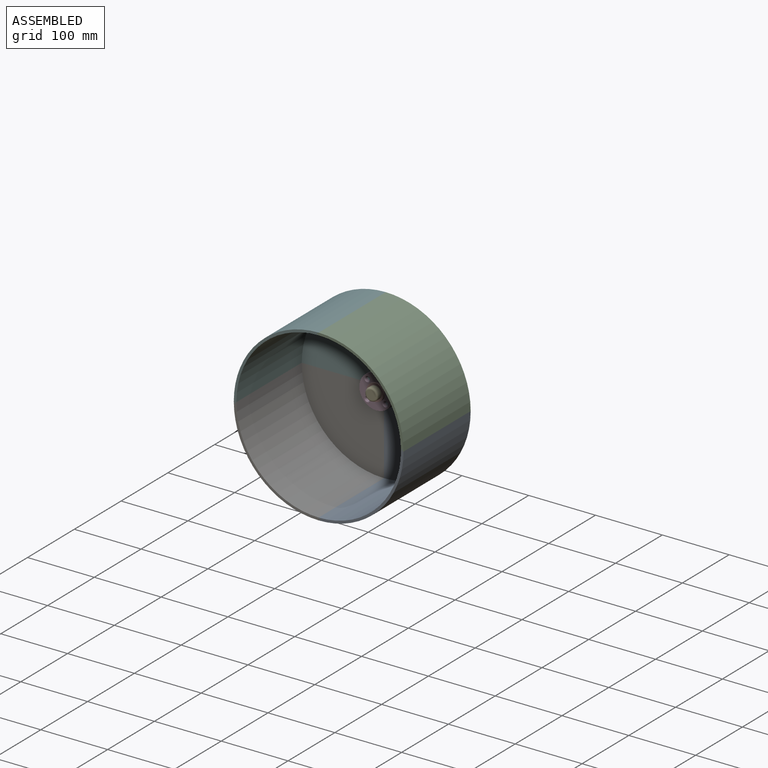
[diagram: assembled view]
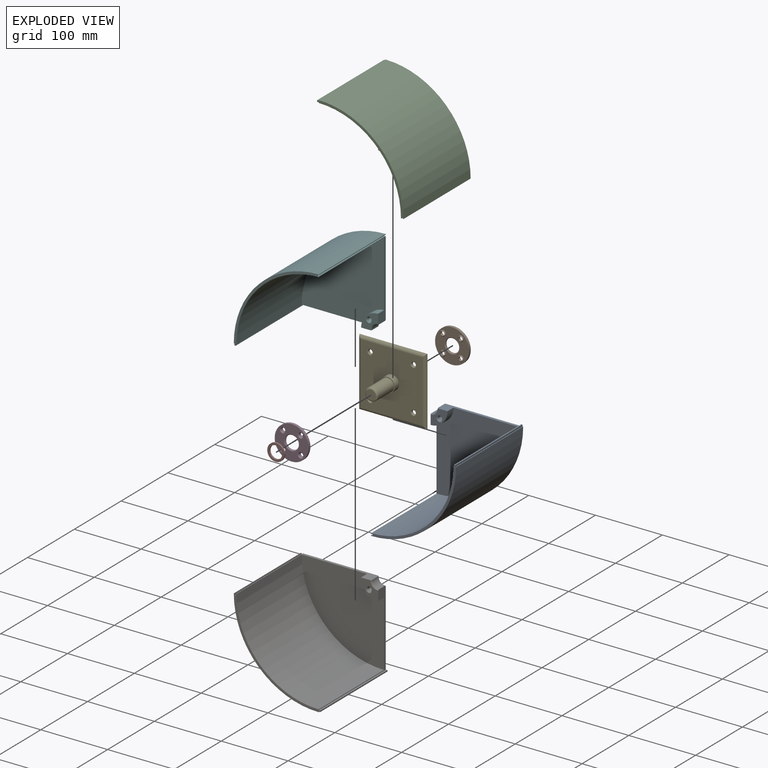
[diagram: exploded view]
GUIDED TOUR — MATED ASSEMBLY (Onshape document a05f78b1c5fa4928377569fe, AutoMate assembly a05f78b1c5fa4928377569fe_af85727824f9fc0c947a1b8c_8192579944c0cb882bcdac87_default)

This assembly has 8 components, labeled P0..P7 below (a component is one placed occurrence of a part; the same part can appear more than once), held together by 8 mates. A mate is a constraint between two components; its type names the relative motion it leaves free:
  CYLINDRICAL — leaves both rotation about and translation along the listed axis free,
  FASTENED — locks the two components together rigidly (no relative motion).
Axis/direction vectors are unit vectors and 'through' points are millimeter coordinates, both in the assembly's world frame.

MATES
  1. FASTENED "Fastened 4": P2 <-> P5, direction (0.000, 0.000, 1.000) through (-44.11, 98.42, 121.76) mm
  2. FASTENED "Fastened 5": P6 <-> P0, direction (0.000, 0.000, -1.000) through (-41.57, 98.42, -130.34) mm
  3. FASTENED "Fastened 3": P0 <-> P2, direction (-1.000, 0.000, 0.000) through (81.30, 98.42, -3.02) mm
  4. FASTENED "Fastened 6": P4 <-> P1, direction (0.000, -1.000, 0.000) through (-42.84, 173.98, -4.29) mm
  5. FASTENED "Fastened 7": P7 <-> P3, direction (0.000, 1.000, 0.000) through (-42.84, 149.85, -4.29) mm
  6. FASTENED "Fastened 2": P1 <-> P0, direction (0.000, -1.000, 0.000) through (-29.37, 170.17, -17.76) mm
  7. FASTENED "Fastened 1": P3 <-> P0, direction (0.000, 1.000, 0.000) through (-29.37, 153.66, -17.76) mm
  8. CYLINDRICAL "Cylindrical 1": P4 <-> P1, axis (0.000, -1.000, 0.000) through (-42.84, 138.42, -4.29) mm

ASSEMBLY ORDER
  1. P4 — the base component [order verified]
  2. P1 [order verified]
  3. P3 [order verified]
  4. P7 [order verified]
  5. P0 [order verified]
  6. P6 [order verified]
  7. P5 [order verified]
  8. P2 [order verified]
Order-tag legend:
  [order verified] — this step's position reverses a verified removal order: the component was checked to insert without passing through the ones already placed.

Of the 8 components, 1 carries the full construction recipe — the FeatureScript program that regenerates the part's solid from scratch; the rest are supplied as boundary geometry only.
Each toured component is shown spotlighted twice — in the assembled view, then in the exploded view, where a leader line traces a displaced component back to its assembled socket (saturated green if recipe-attached, orange if geometry-only; every other component desaturated gray) — followed by its recipe or geometry summary and the mates that hold it.
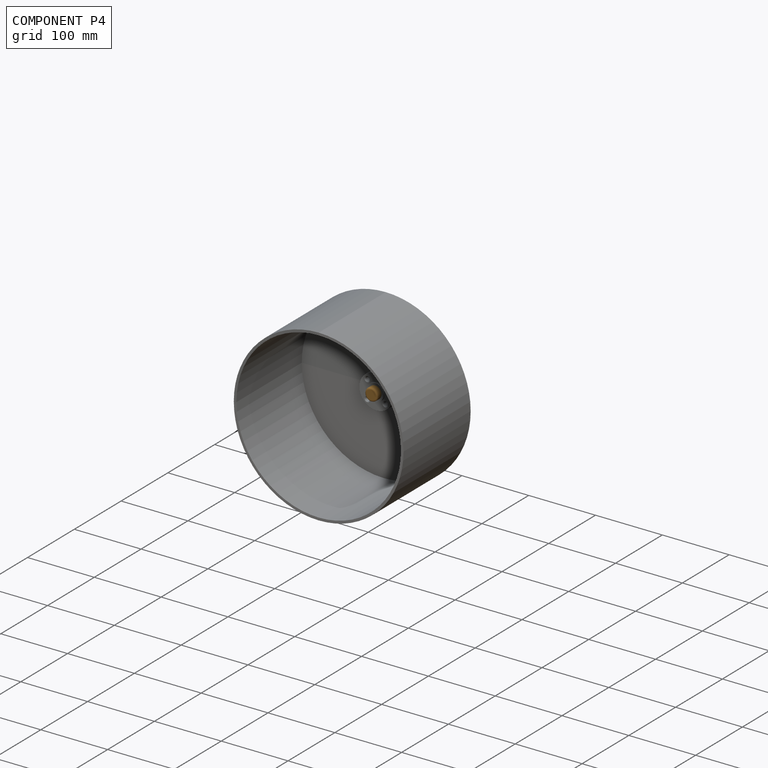
[diagram: component P4 — assembled]
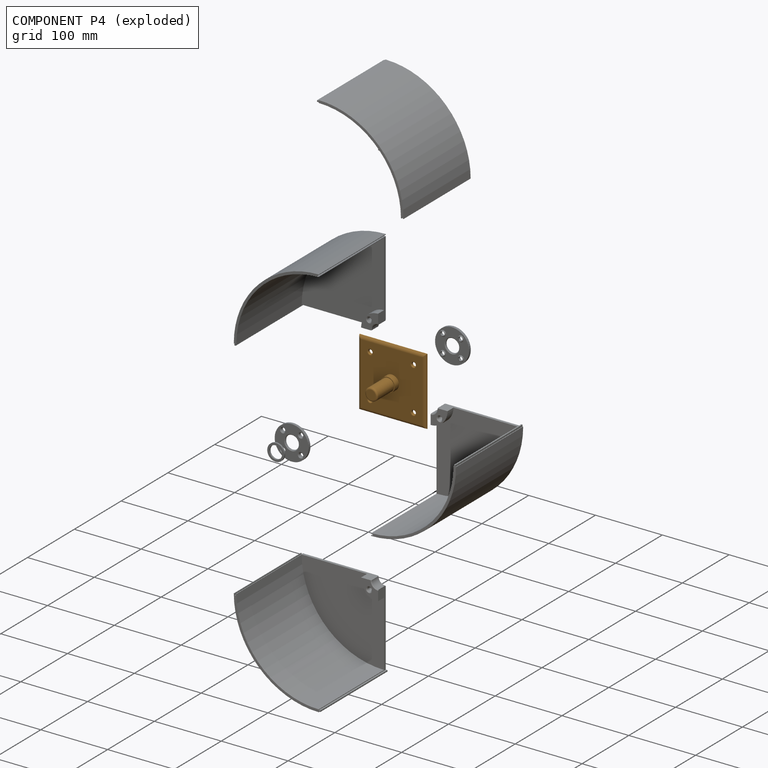
[diagram: component P4 — exploded]
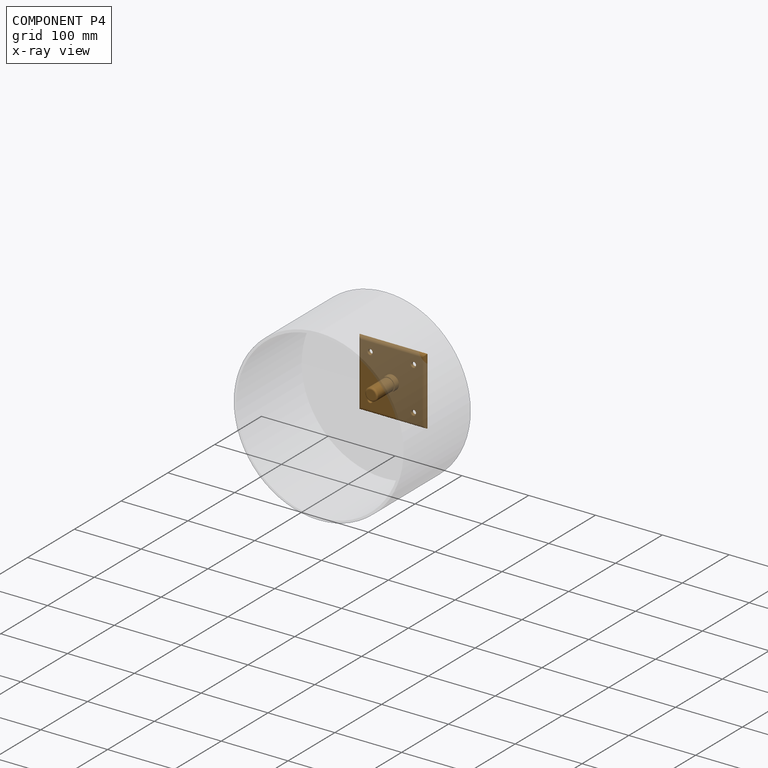
[diagram: component P4 — x-ray view]
COMPONENT P4 — geometry summary (no construction recipe available for this part):
  bounding box: 101.6 x 101.6 x 48.3 mm
  B-rep topology: 1 solid, 19 faces, 80 edges
  volume: 50199 mm^3 (10% of its bounding box)
  symmetry: 4-fold rotationally symmetric about the y axis; mirror-symmetric across its x mid-plane, z mid-plane
Held by: FASTENED mate "Fastened 6" to P1; CYLINDRICAL mate "Cylindrical 1" to P1.
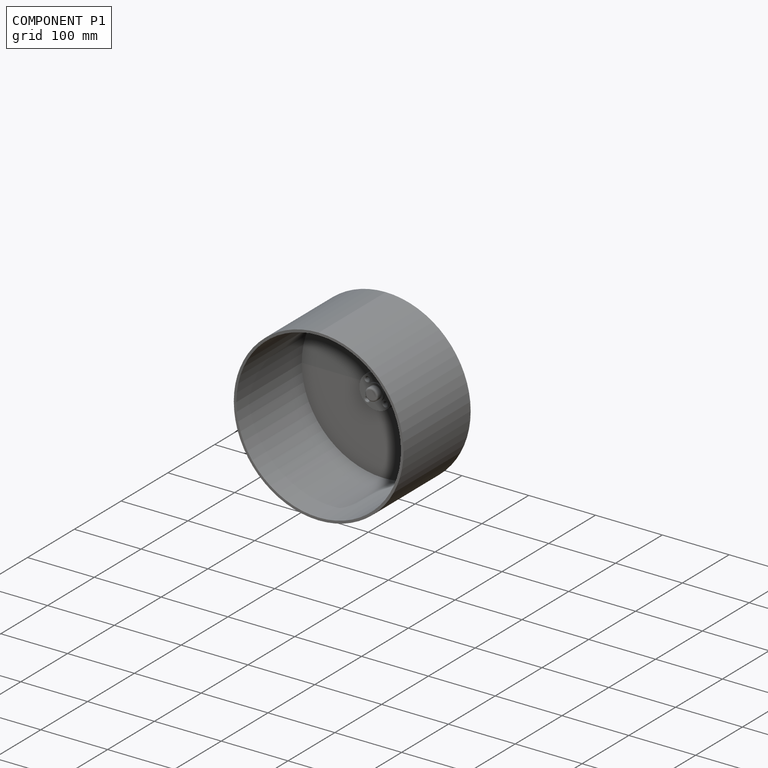
[diagram: component P1 — assembled]
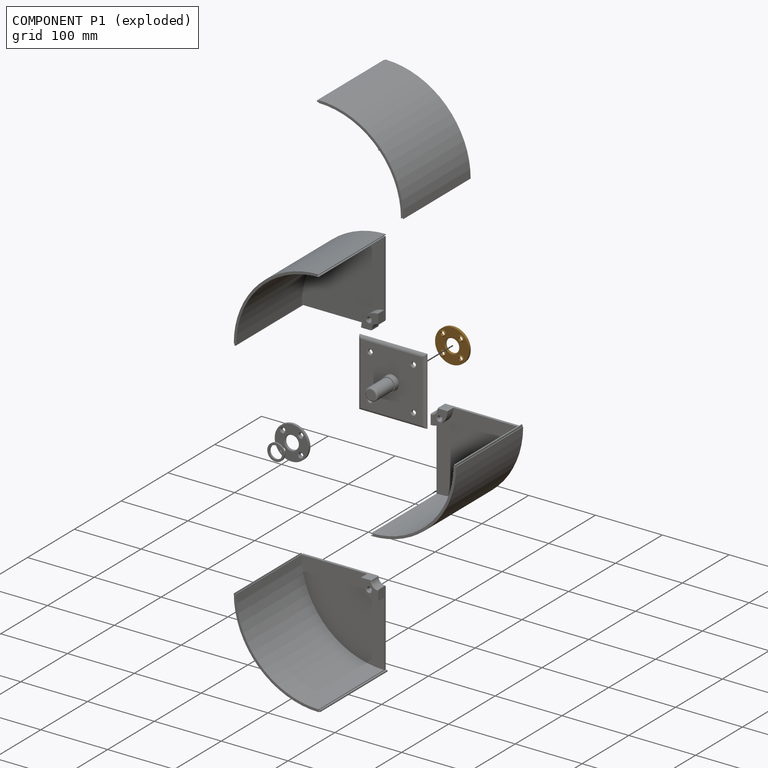
[diagram: component P1 — exploded]
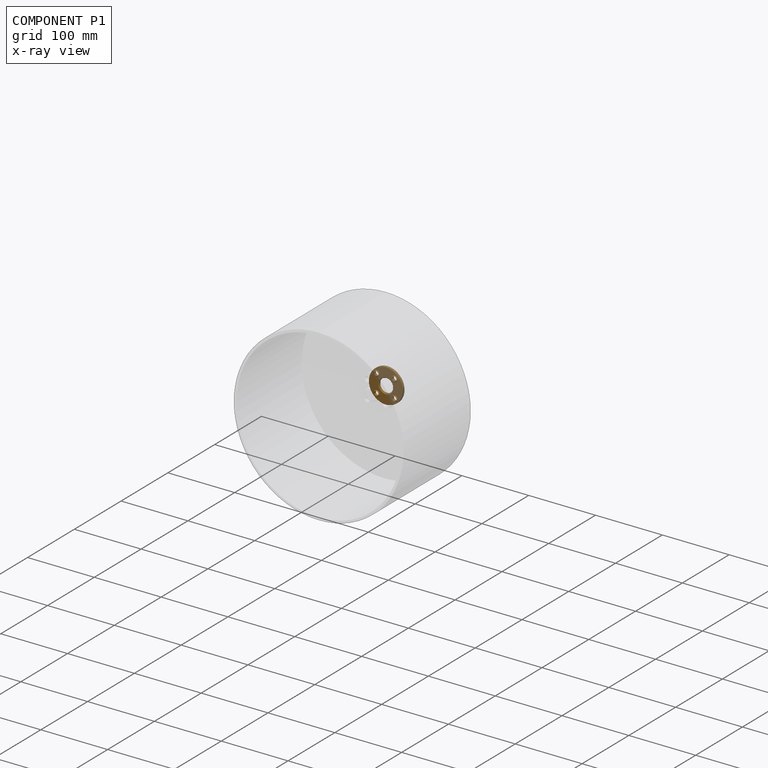
[diagram: component P1 — x-ray view]
COMPONENT P1 — geometry summary (no construction recipe available for this part):
  bounding box: 50.8 x 50.8 x 5.1 mm
  B-rep topology: 1 solid, 18 faces, 92 edges
  volume: 5963 mm^3 (45% of its bounding box)
  symmetry: 4-fold rotationally symmetric about the y axis; mirror-symmetric across its x mid-plane, z mid-plane
Held by: FASTENED mate "Fastened 6" to P4; FASTENED mate "Fastened 2" to P0; CYLINDRICAL mate "Cylindrical 1" to P4.
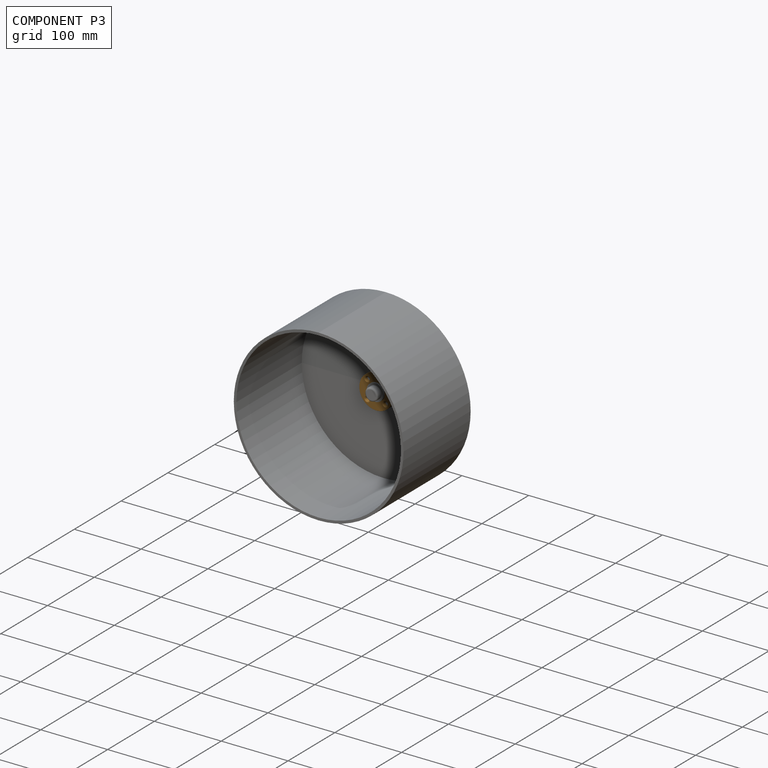
[diagram: component P3 — assembled]
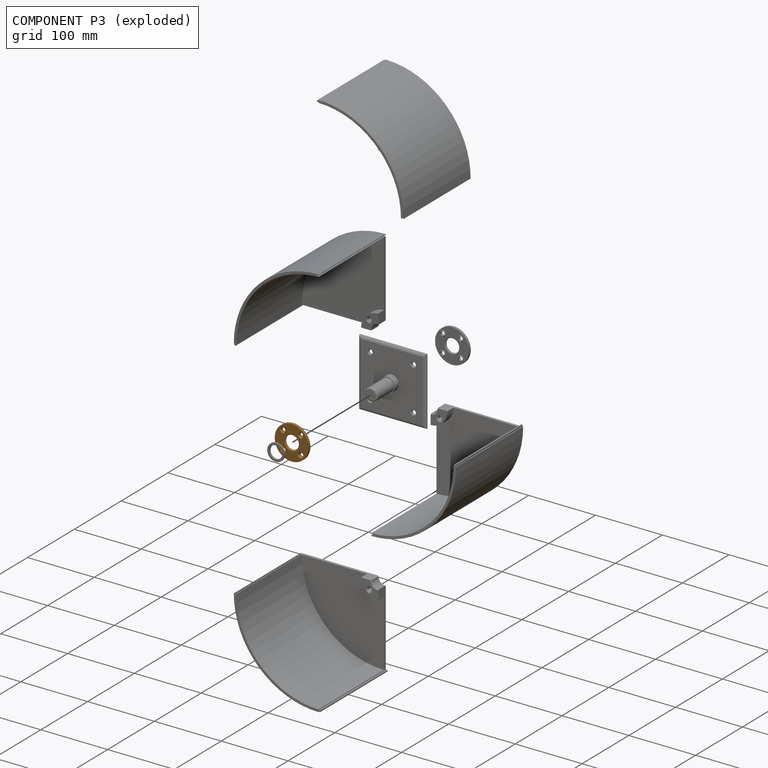
[diagram: component P3 — exploded]
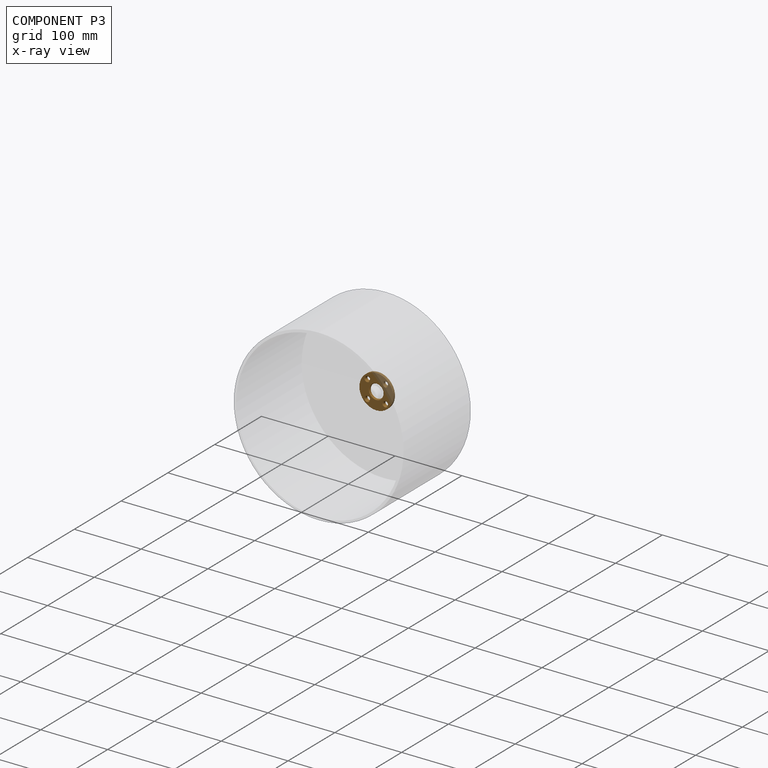
[diagram: component P3 — x-ray view]
COMPONENT P3 — geometry summary (no construction recipe available for this part):
  bounding box: 50.8 x 50.8 x 5.1 mm
  B-rep topology: 1 solid, 18 faces, 92 edges
  volume: 5963 mm^3 (45% of its bounding box)
  symmetry: 4-fold rotationally symmetric about the y axis; mirror-symmetric across its x mid-plane, z mid-plane
Held by: FASTENED mate "Fastened 7" to P7; FASTENED mate "Fastened 1" to P0.
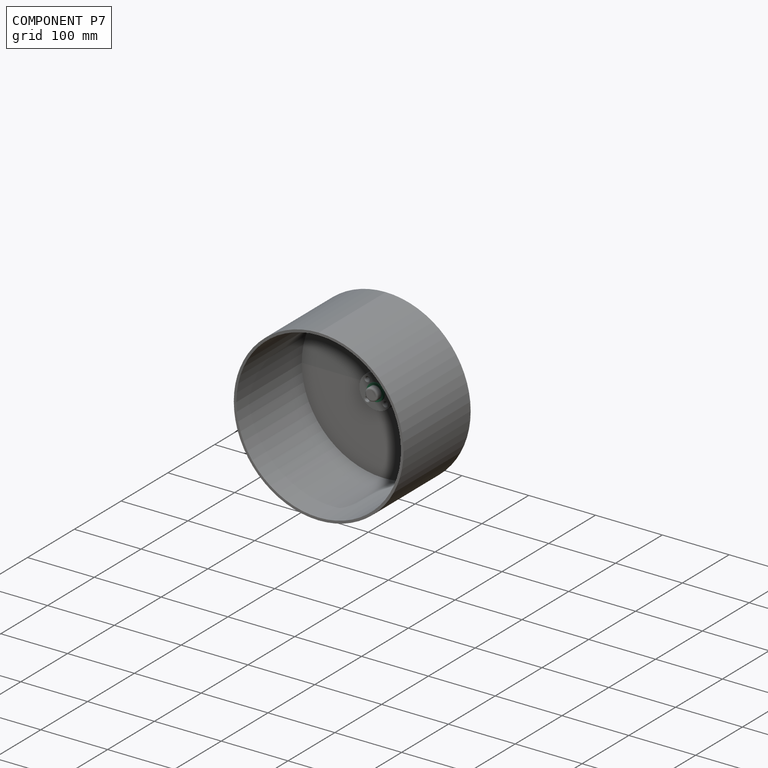
[diagram: component P7 — assembled]
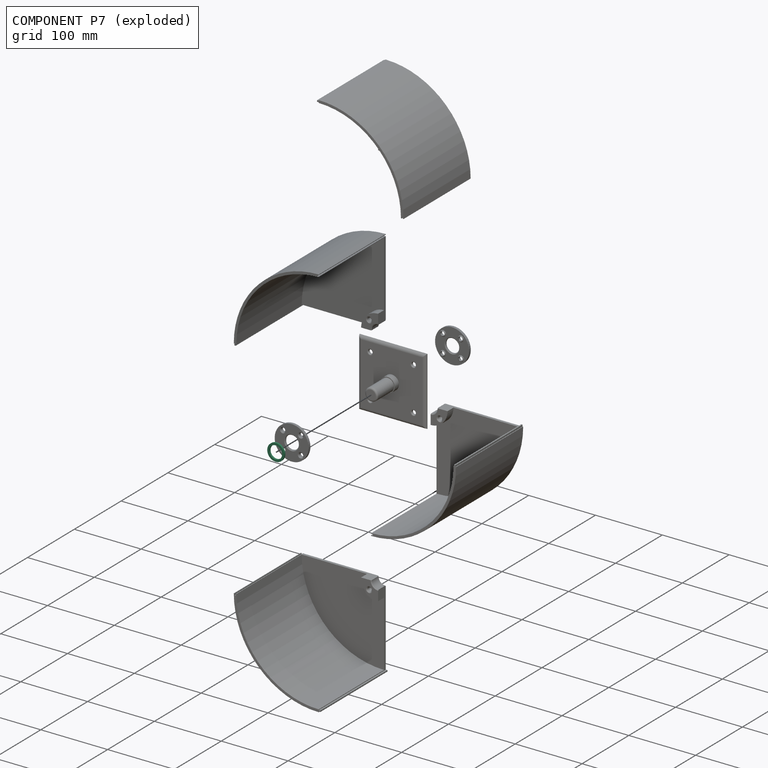
[diagram: component P7 — exploded]
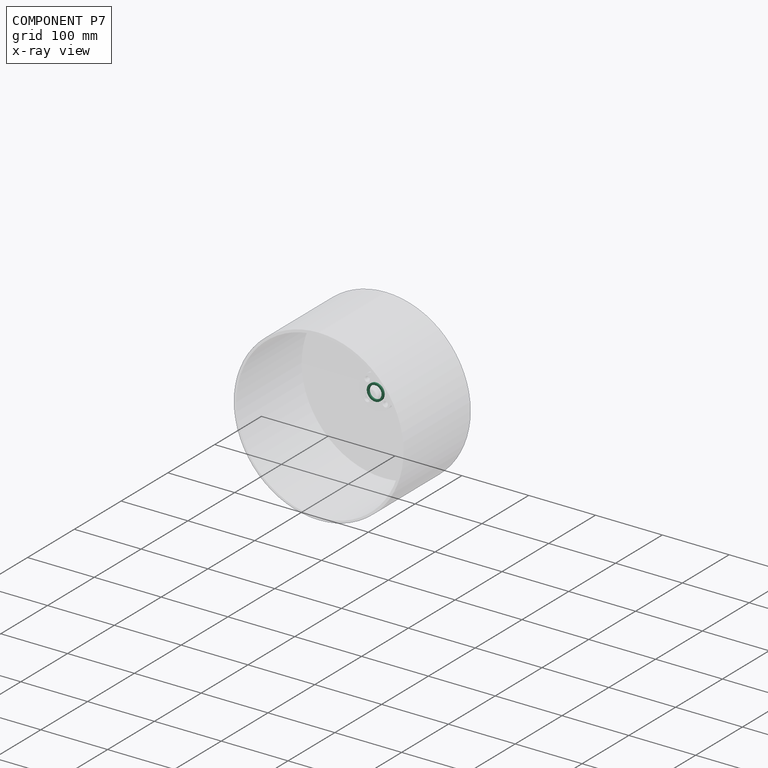
[diagram: component P7 — x-ray view]
COMPONENT P7 — recipe-attached (CADFS 00948687, mesh-verified: the recipe's output STEP matches this component's geometry to below the mesh-comparison resolution (tessellation chordal tolerance ~0.054 mm)).
Held by: FASTENED mate "Fastened 7" to P3.
Construction recipe (FeatureScript — the CAD program that rebuilds this solid; sketch coordinates are in the units given by the * unit suffixes, e.g. mm):

FeatureScript 1511;
import(path : "onshape/std/geometry.fs", version : "1511.0");
import(path : "onshape/std/common.fs", version : "1511.0");
const mm = millimeter;
const VERTEX = EntityType.VERTEX;
const EDGE = EntityType.EDGE;
const FACE = EntityType.FACE;
const BODY = EntityType.BODY;
function v(x, y){return vector(x, y);}
function OD(order){return orderDisambiguation(order);}
function OSD(set){return originalSetDisambiguation(set);}
function TD(topology){return topologyDisambiguation(topology);}
function TDD(query){return trueDependencyDisambiguation(query);}
function sQuery(a, b, c) {return sketchEntityQuery(a, b, c);}

annotation { "Feature Type Name" : "Feature", "Feature Type Description" : "" }
export const myFeature = defineFeature(function(context is Context, id is Id, definition is map)
    precondition{}
    {
        {
            var Q0;
            Q0=qCreatedBy(makeId("Front.planeOp"),FACE);
            var sketch = newSketch(context, id + "F0", { "sketchPlane" : qUnion([Q0])});
            skCircle(sketch, "E0", {"center": v(0, 0) * mm, "radius": 9.53 * mm});
            skCircle(sketch, "E1", {"center": v(0, 0) * mm, "radius": 12.7 * mm});
            skSolve(sketch);
        }
        {
            var Q0;
            Q0=makeQuery(id+"F0.imprint","IMPRINT",FACE,{"disambiguationData":[TD([[makeQuery(id+"F0.imprint","IMPRINT",EDGE,{"derivedFrom":sQuery(id+"F0.wireOp",EDGE,"E0")}),-1.0]])]});
            extrude(context, id + "F1", {"entities" : qUnion([Q0]), "depth" : 2.54 * mm, "offsetDistance" : 25.4 * mm});
        }
    });
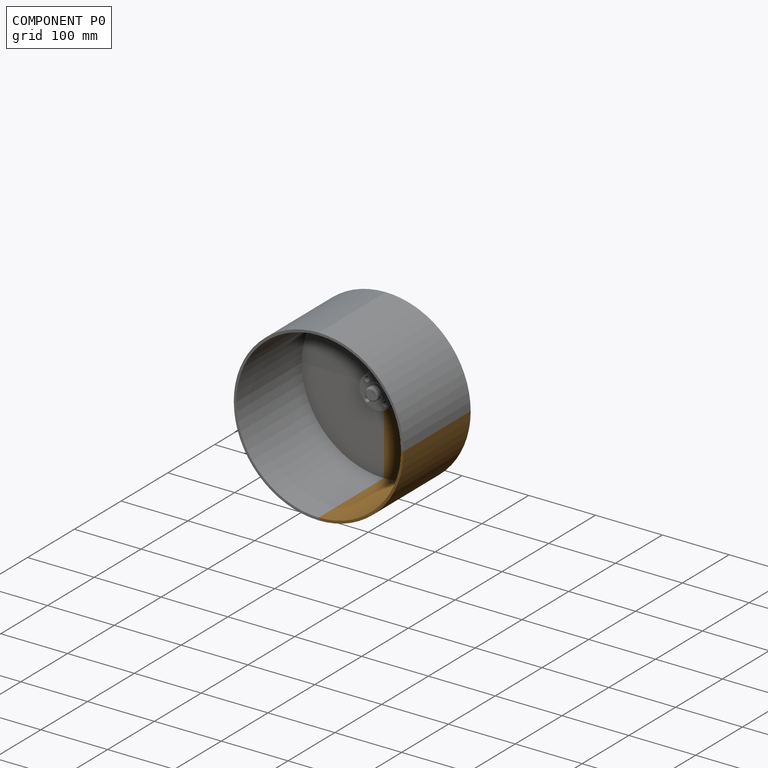
[diagram: component P0 — assembled]
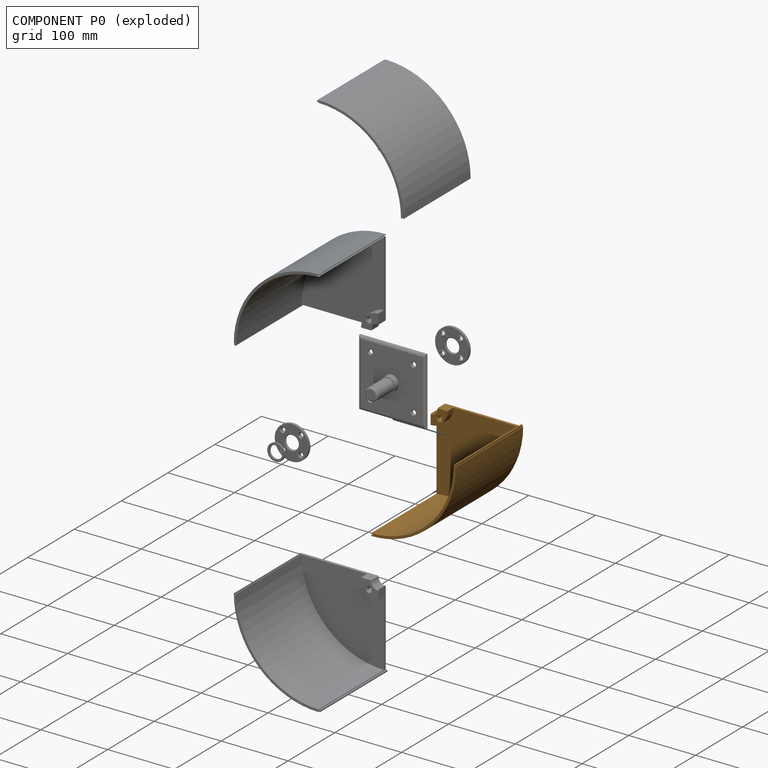
[diagram: component P0 — exploded]
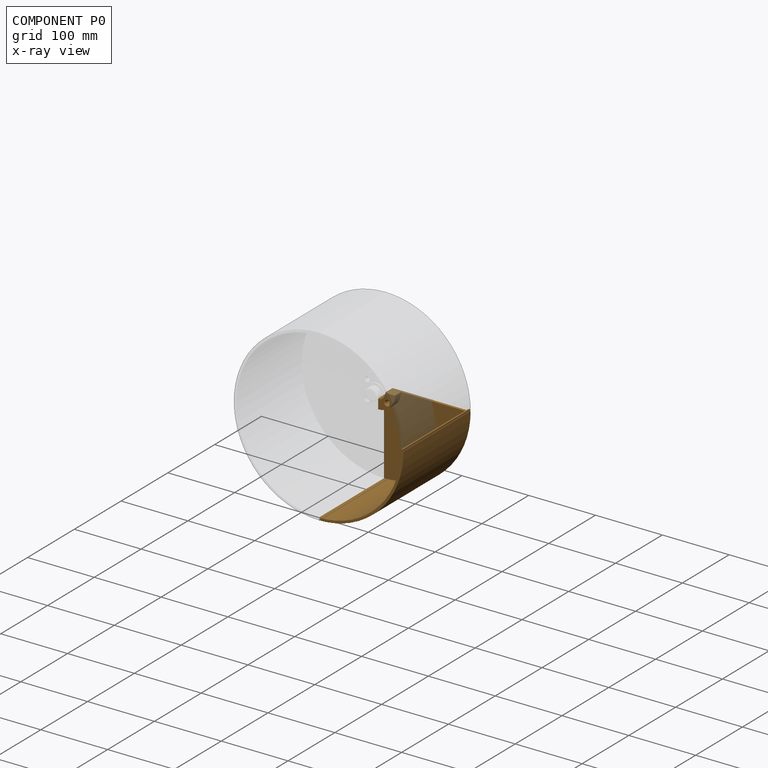
[diagram: component P0 — x-ray view]
COMPONENT P0 — geometry summary (no construction recipe available for this part):
  bounding box: 143.5 x 129.5 x 127.0 mm
  B-rep topology: 1 solid, 23 faces, 122 edges
  volume: 157363 mm^3 (7% of its bounding box)
Held by: FASTENED mate "Fastened 5" to P6; FASTENED mate "Fastened 3" to P2; FASTENED mate "Fastened 2" to P1; FASTENED mate "Fastened 1" to P3.
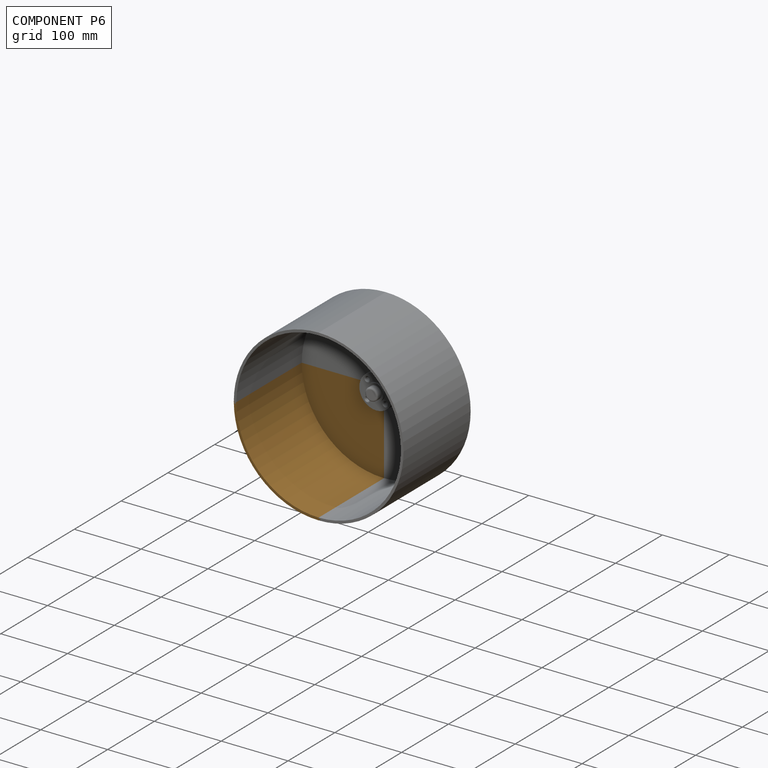
[diagram: component P6 — assembled]
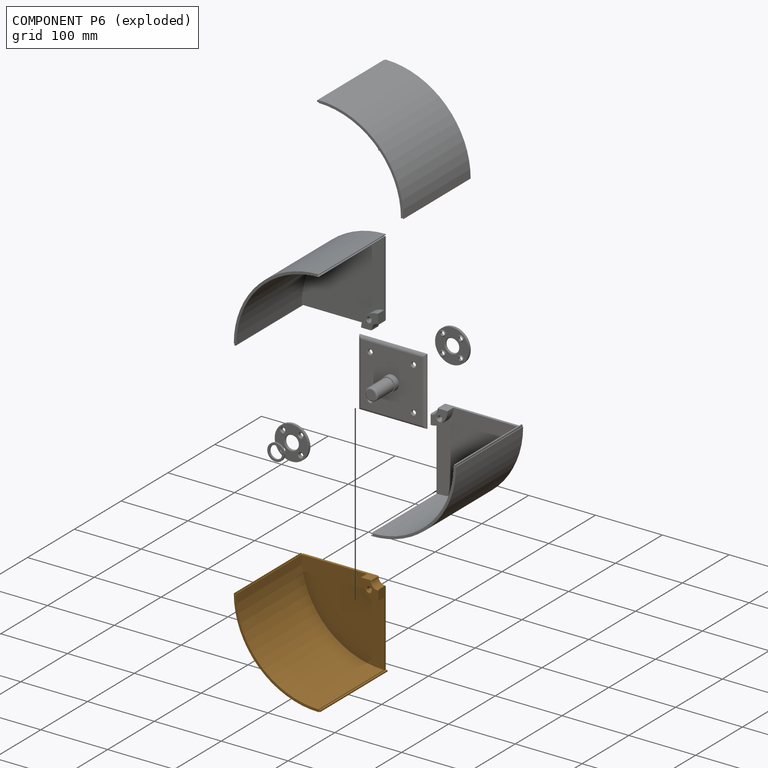
[diagram: component P6 — exploded]
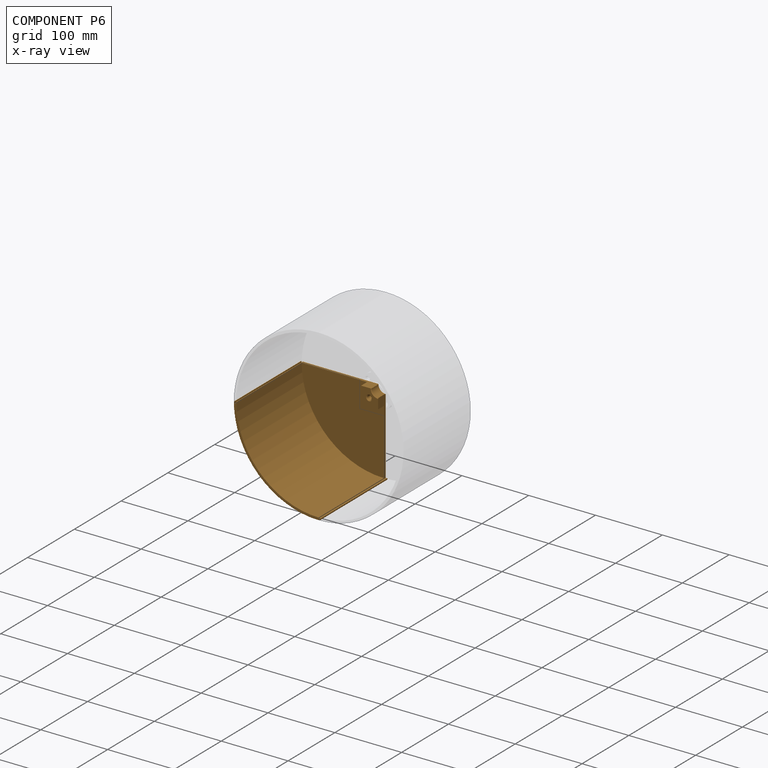
[diagram: component P6 — x-ray view]
COMPONENT P6 — geometry summary (no construction recipe available for this part):
  bounding box: 143.5 x 129.5 x 127.0 mm
  B-rep topology: 1 solid, 23 faces, 122 edges
  volume: 157363 mm^3 (7% of its bounding box)
Held by: FASTENED mate "Fastened 5" to P0.
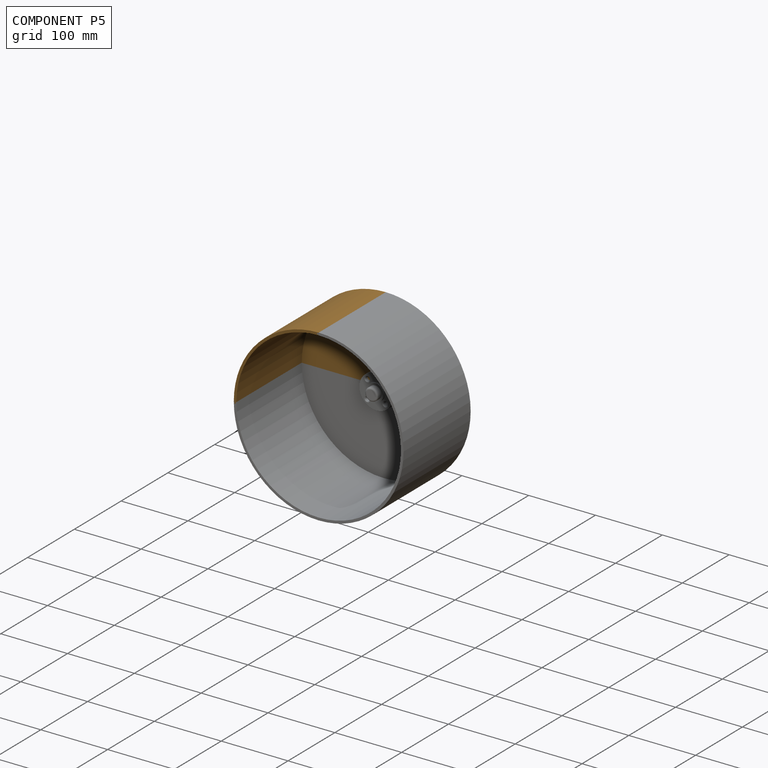
[diagram: component P5 — assembled]
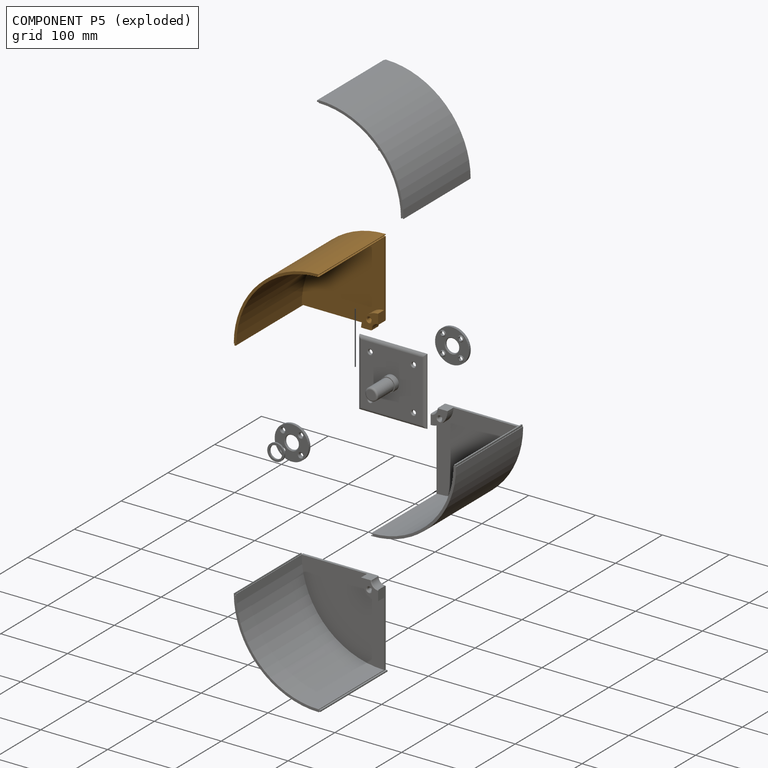
[diagram: component P5 — exploded]
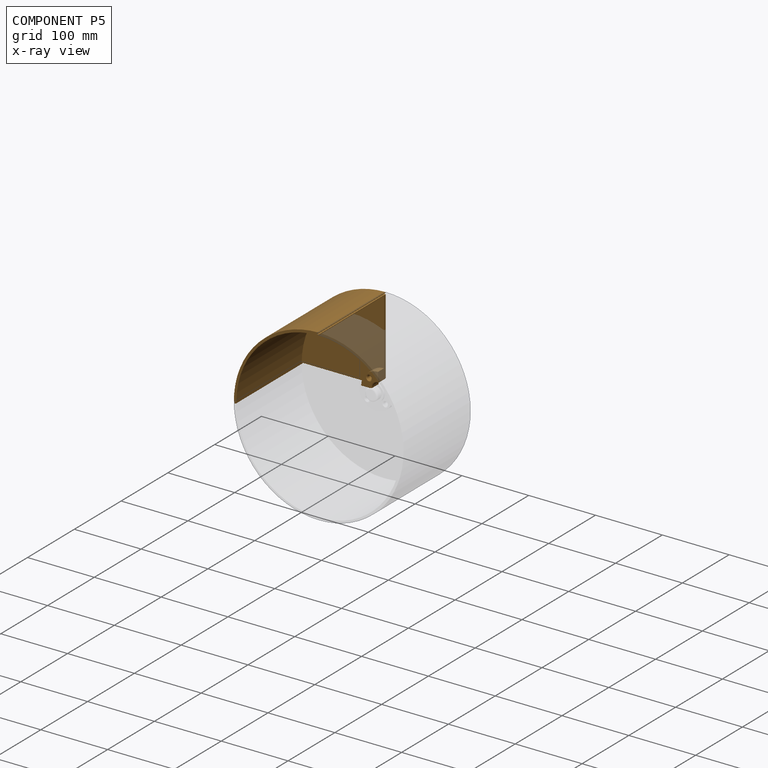
[diagram: component P5 — x-ray view]
COMPONENT P5 — geometry summary (no construction recipe available for this part):
  bounding box: 143.5 x 129.5 x 127.0 mm
  B-rep topology: 1 solid, 23 faces, 122 edges
  volume: 157363 mm^3 (7% of its bounding box)
Held by: FASTENED mate "Fastened 4" to P2.
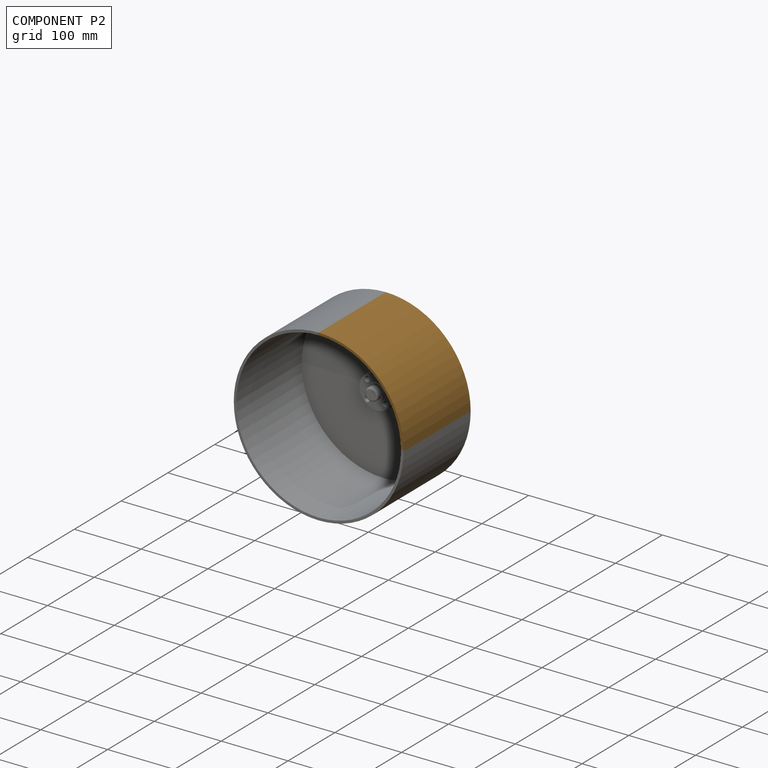
[diagram: component P2 — assembled]
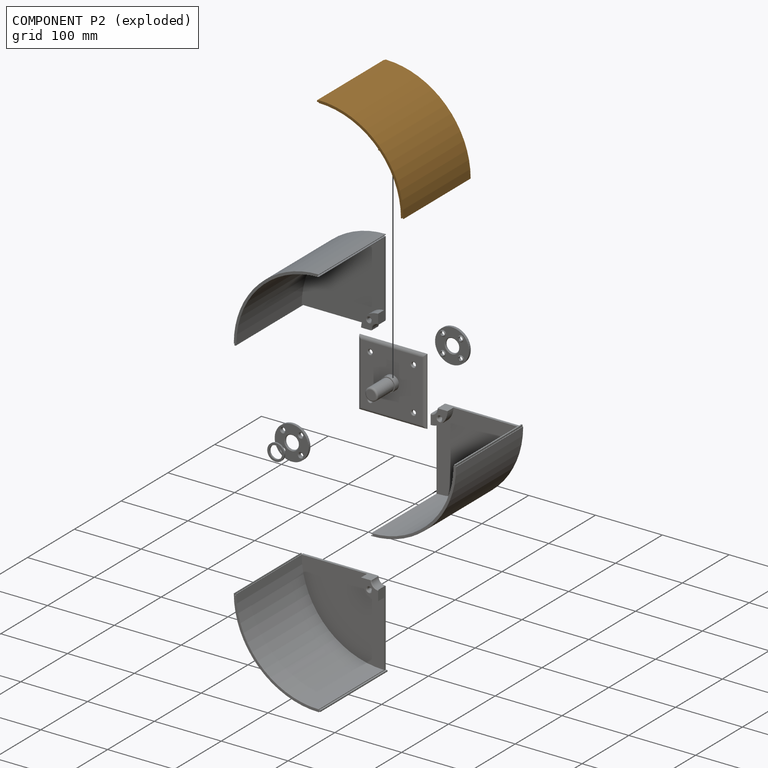
[diagram: component P2 — exploded]
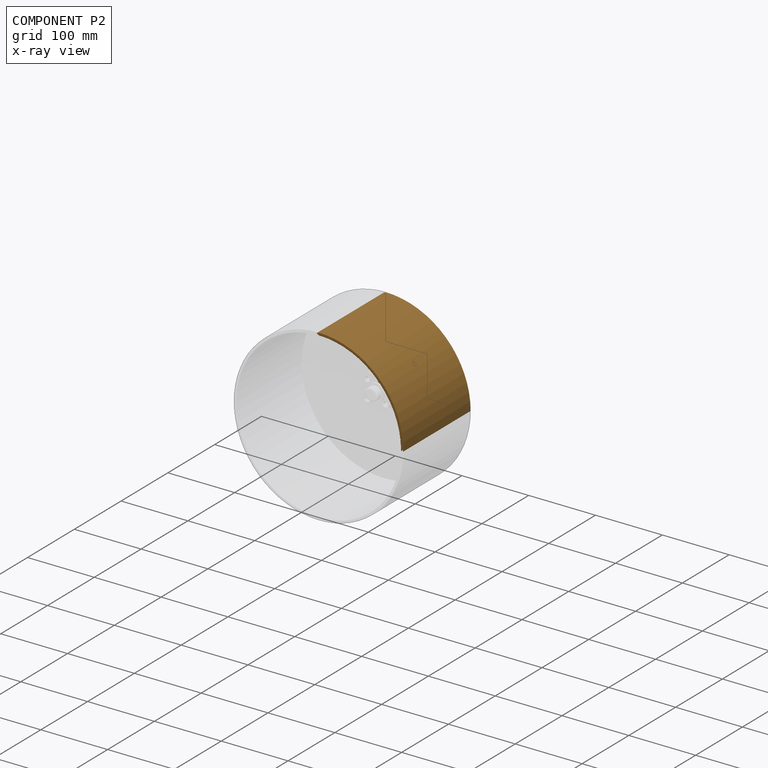
[diagram: component P2 — x-ray view]
COMPONENT P2 — geometry summary (no construction recipe available for this part):
  bounding box: 143.5 x 129.5 x 127.0 mm
  B-rep topology: 1 solid, 23 faces, 122 edges
  volume: 157363 mm^3 (7% of its bounding box)
Held by: FASTENED mate "Fastened 4" to P5; FASTENED mate "Fastened 3" to P0.
PROVENANCE & LICENSES
Assembly (occurrences, transforms, mates, per-part STEP geometry): AutoMate dataset, Zenodo record 7776208, CC0.
Construction recipes: CADFS (HuggingFace VladPyatov/CADFS, CC-BY-4.0, layered over the ABC dataset), FeatureScript reconstruction programs keyed by ABC model id.
Join: ABC meta listings map ABC model id -> Onshape documentId; within a shared document, parts are matched by geometric signature (bounding-box dims + volume at 0.1% relative tolerance, exact B-rep face/solid counts).
Verification: 1 of this assembly's 8 components carries a recipe attachment, and every attachment is mesh-verified: the CADFS STEP and the AutoMate member STEP were compared as meshes in their shared local frame (symmetric sampled-point-to-mesh distance); worst across the 1 attachment: below the mesh-comparison resolution (tessellation chordal tolerance ~0.054 mm) on a 36 mm part.
Renders: orthographic iso camera (az 35 / el 25); the floor grid conveys scale (grid pitch printed in each image; no ruler). In the exploded view each component is displaced by its stored offset vector: the offsets alone carry the explosion direction (mate normal/axis signs are not orientation cues and do not encode it), and separation distances are assigned per mate-chain, not proportionally to assembly-order depth.
